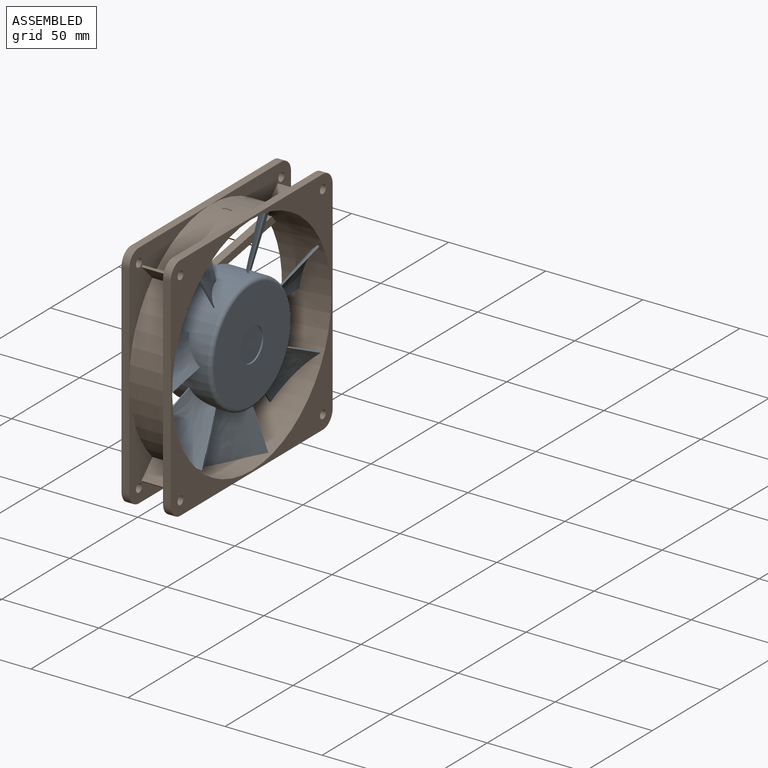
[diagram: assembled view]
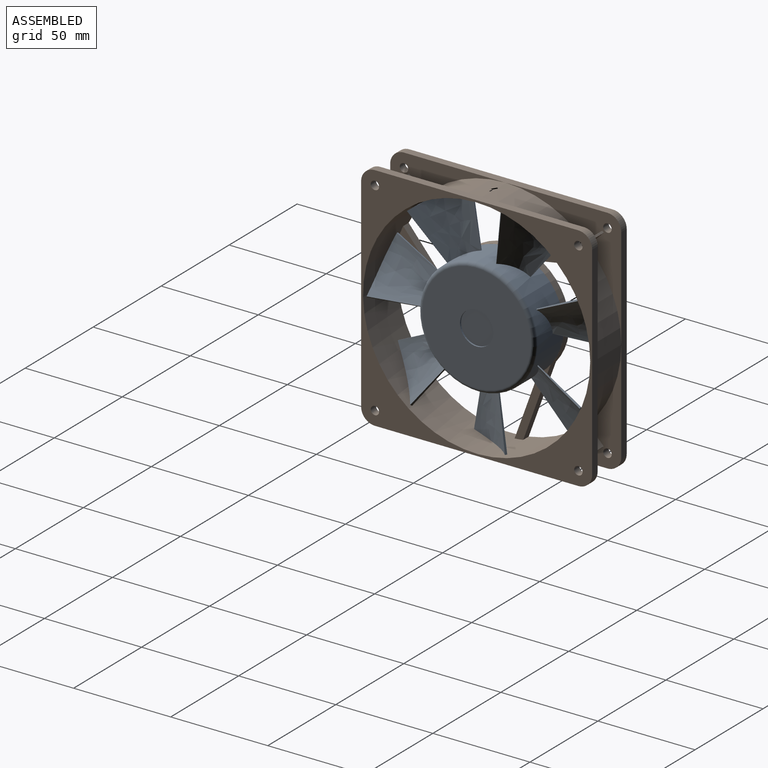
[diagram: assembled view, second angle]
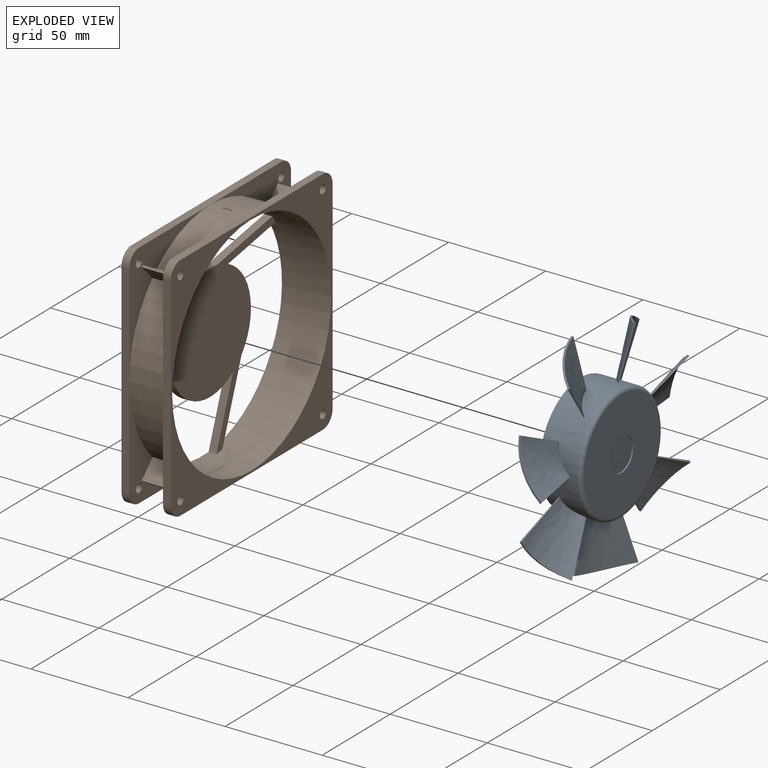
[diagram: exploded view]
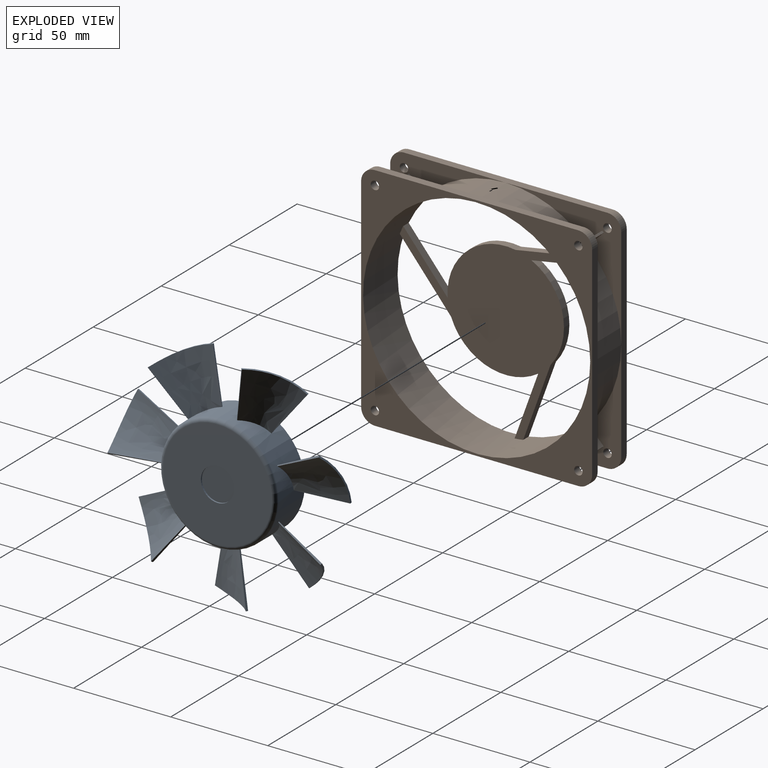
[diagram: exploded view, second angle]
ASSEMBLY  parts=2 mates=2
PART A: 41 faces, bbox 118.6x21.4x116.3 mm
  f0: plane 56x56mm, normal (0,-1,0), area 2232.2mm2, adj f38,f40
  f1: bspline ~31.81x26.92mm, area 642.2mm2, adj f2,f3,f29,f37
  f2: plane 26.99x6.36mm, normal (-0.63,-0.73,-0.26), area 20.7mm2, adj f1,f4,f29,f37
  f3: plane 26.68x6.88mm, normal (0.95,0.15,-0.26), area 20.3mm2, adj f1,f4,f29,f37
  f4: bspline ~31.79x27.53mm, area 656.4mm2, adj f2,f3,f29,f37
  f5: bspline ~37.49x34.53mm, area 642.2mm2, adj f6,f7,f29,f36
  f6: plane 21.66x17.81mm, normal (-0.6,-0.73,0.34), area 20.7mm2, adj f5,f8,f29,f36
  f7: plane 25.11x11.42mm, normal (0.39,0.15,-0.91), area 20.3mm2, adj f5,f8,f29,f36
  f8: bspline ~37.59x35.05mm, area 656.4mm2, adj f6,f7,f29,f36
  f9: bspline ~32.06x26.61mm, area 642.2mm2, adj f10,f11,f29,f35
  f10: plane 27.5x4.93mm, normal (-0.11,-0.73,0.68), area 20.7mm2, adj f9,f12,f29,f35
  f11: plane 24.53x12.64mm, normal (-0.46,0.15,-0.87), area 20.3mm2, adj f9,f12,f29,f35
  f12: bspline ~35.33x26.99mm, area 656.4mm2, adj f10,f11,f29,f35
  f13: bspline ~37.44x30.73mm, area 642.2mm2, adj f14,f15,f29,f34
  f14: plane 22.03x17.34mm, normal (0.46,-0.73,0.51), area 20.7mm2, adj f13,f16,f29,f34
  f15: plane 26.98x5.57mm, normal (-0.97,0.15,-0.18), area 20.3mm2, adj f13,f16,f29,f34
  f16: bspline ~34.73x30.52mm, area 656.4mm2, adj f14,f15,f29,f34
  f17: bspline ~34.08x31.08mm, area 642.2mm2, adj f18,f19,f29,f33
  f18: plane 26.87x6.95mm, normal (0.68,-0.73,-0.04), area 20.7mm2, adj f17,f20,f29,f33
  f19: plane 21.14x17.75mm, normal (-0.75,0.15,0.65), area 20.3mm2, adj f17,f20,f29,f33
  f20: bspline ~37.09x32.2mm, area 656.4mm2, adj f18,f19,f29,f33
  f21: bspline ~32.35x26.11mm, area 642.2mm2, adj f22,f23,f29,f32
  f22: plane 25.14x12.15mm, normal (0.39,-0.73,-0.56), area 20.7mm2, adj f21,f24,f29,f32
  f23: plane 27.49x3.31mm, normal (0.04,0.15,0.99), area 20.3mm2, adj f21,f24,f29,f32
  f24: bspline ~32.38x26.69mm, area 656.4mm2, adj f22,f23,f29,f32
  f25: bspline ~34.4x33.99mm, area 642.2mm2, adj f26,f27,f29,f31
  f26: plane 24.89x12.7mm, normal (-0.19,-0.73,-0.66), area 20.7mm2, adj f25,f28,f29,f31
  f27: plane 21.98x16.7mm, normal (0.8,0.15,0.59), area 20.3mm2, adj f25,f28,f29,f31
  f28: bspline ~34.8x34.16mm, area 656.4mm2, adj f26,f27,f29,f31
  f29: cylinder r=30mm len=60mm, axis (0,-1,0), area 3598.3mm2, adj f1,f2,f3,f4,f5,f6,f7,f8
  f30: plane 60x60mm, normal (0,1,0), area 2827.4mm2, adj f29
  f31: cylinder r=57.5mm len=20.67mm, axis (0,1,0), area 30.7mm2, adj f25,f26,f27,f28
  f32: cylinder r=57.5mm len=26.19mm, axis (0,1,0), area 30.7mm2, adj f21,f22,f23,f24
  f33: cylinder r=57.5mm len=23.94mm, axis (0,1,0), area 30.7mm2, adj f17,f18,f19,f20
  f34: cylinder r=57.5mm len=24.29mm, axis (0,1,0), area 30.7mm2, adj f13,f14,f15,f16
  f35: cylinder r=57.5mm len=26mm, axis (0,1,0), area 30.7mm2, adj f9,f10,f11,f12
  f36: cylinder r=57.5mm len=21.18mm, axis (0,1,0), area 30.7mm2, adj f5,f6,f7,f8
  f37: cylinder r=57.5mm len=26.77mm, axis (0,1,0), area 30.7mm2, adj f1,f2,f3,f4
  f38: cylinder r=8.57mm len=17.14mm, axis (0,-1,0), area 43.1mm2, adj f0,f39
  f39: plane 17.14x17.14mm, normal (0,-1,0), area 230.8mm2, adj f38
  f40: torus R=28mm, axis (0,1,0), area 577.8mm2, adj f0,f29
PART B: 69 faces, bbox 119x25.4x119 mm
  f0: cylinder r=2.16mm len=4.32mm, axis (0,1,0), area 54.3mm2, adj f1,f34
  f1: plane 59.5x59.5mm, normal (0,-1,0), area 722mm2, adj f0,f2,f16,f23,f24,f25,f43,f44
  f2: cylinder r=59.5mm len=83.38mm, axis (0,-1,0), area 1598.7mm2, adj f1,f3,f5,f8,f22,f24,f61,f62
  f3: plane 59.5x59.5mm, normal (0,-1,0), area 722mm2, adj f2,f4,f6,f7,f8,f45,f46,f47
  f4: cylinder r=59.5mm len=83.38mm, axis (0,-1,0), area 1607.5mm2, adj f3,f5,f7,f10,f12,f60
  f5: plane 59.5x59.5mm, normal (0,1,0), area 722mm2, adj f2,f4,f6,f7,f8,f9,f26,f27
  f6: plane 17.4x0.76mm, normal (-0.71,0,0.71), area 18.8mm2, adj f3,f5,f7,f8
  f7: plane 17.4x8.04mm, normal (-0.71,0,-0.71), area 197.8mm2, adj f3,f4,f5,f6
  f8: plane 17.4x8.04mm, normal (0.71,0,0.71), area 197.8mm2, adj f2,f3,f5,f6
  f9: plane 104.8x4mm, normal (-1,0,0), area 419.2mm2, adj f5,f10,f27,f28,f56
  f10: plane 59.5x59.5mm, normal (0,1,0), area 722mm2, adj f4,f9,f11,f13,f14,f29,f54,f56
  f11: plane 17.4x0.76mm, normal (-0.71,0,-0.71), area 18.8mm2, adj f10,f12,f14,f60
  f12: plane 59.5x59.5mm, normal (0,-1,0), area 722mm2, adj f4,f11,f13,f14,f41,f47,f48,f49
  f13: cylinder r=59.5mm len=83.38mm, axis (0,-1,0), area 1607.5mm2, adj f10,f12,f14,f15,f17,f20
  f14: plane 17.4x8.04mm, normal (0.71,0,-0.71), area 197.8mm2, adj f10,f11,f12,f13
  f15: plane 59.5x59.5mm, normal (0,-1,0), area 722mm2, adj f13,f16,f18,f19,f20,f42,f43,f49
  f16: cylinder r=59.5mm len=83.38mm, axis (0,-1,0), area 1607.5mm2, adj f1,f15,f17,f19,f22,f25
  f17: plane 59.5x59.5mm, normal (0,1,0), area 722mm2, adj f13,f16,f18,f19,f20,f21,f54,f55
  f18: plane 17.4x0.76mm, normal (0.71,0,-0.71), area 18.8mm2, adj f15,f17,f19,f20
  f19: plane 17.4x8.04mm, normal (0.71,0,0.71), area 197.8mm2, adj f15,f16,f17,f18
  f20: plane 17.4x8.04mm, normal (-0.71,0,-0.71), area 197.8mm2, adj f13,f15,f17,f18
  f21: plane 104.8x4mm, normal (1,0,0), area 419.2mm2, adj f17,f22,f28,f55,f57
  f22: plane 59.5x59.5mm, normal (0,1,0), area 722mm2, adj f2,f16,f21,f23,f24,f25,f26,f30
  f23: plane 17.4x0.76mm, normal (0.71,0,0.71), area 18.8mm2, adj f1,f22,f24,f25
  f24: plane 17.4x8.04mm, normal (-0.71,0,0.71), area 197.8mm2, adj f1,f2,f22,f23
  f25: plane 17.4x8.04mm, normal (0.71,0,-0.71), area 197.8mm2, adj f1,f16,f22,f23
  f26: plane 104.8x4mm, normal (0,0,1), area 419.2mm2, adj f5,f22,f27,f28,f57
  f27: cylinder r=7.1mm len=7.1mm, axis (0,1,0), area 44.6mm2, adj f5,f9,f26,f28
  f28: plane 119x119mm, normal (0,-1,0), area 3307.8mm2, adj f9,f21,f26,f27,f29,f30,f31,f54
  f29: cylinder r=2.16mm len=4.32mm, axis (0,1,0), area 54.3mm2, adj f10,f28
  f30: cylinder r=2.16mm len=4.32mm, axis (0,1,0), area 54.3mm2, adj f22,f28
  f31: cylinder r=58.5mm len=117mm, axis (0,1,0), area 9282.5mm2, adj f28,f32,f33,f34,f35,f37,f38,f40
  f32: plane 102.79x95.03mm, normal (0,-1,0), area 3282.6mm2, adj f31,f33,f35,f36,f37,f38,f39,f40
  f33: plane 38.63x14.06mm, normal (0.94,0,-0.34), area 164.4mm2, adj f31,f32,f34,f51
  f34: plane 119x119mm, normal (0,1,0), area 6590.4mm2, adj f0,f31,f33,f35,f36,f37,f38,f39
  f35: plane 33.42x12.16mm, normal (-0.94,0,0.34), area 142.3mm2, adj f31,f32,f34,f36
  f36: cylinder r=30mm len=44.87mm, axis (0,1,0), area 217mm2, adj f32,f34,f35,f37
  f37: plane 31.49x26.42mm, normal (-0.77,0,-0.64), area 164.4mm2, adj f31,f32,f34,f36
  f38: plane 27.24x22.86mm, normal (0.77,0,0.64), area 142.3mm2, adj f31,f32,f34,f39
  f39: cylinder r=30mm len=35.07mm, axis (0,1,0), area 217mm2, adj f32,f34,f38,f40
  f40: plane 40.48x7.14mm, normal (-0.17,0,0.98), area 164.4mm2, adj f31,f32,f34,f39
  f41: cylinder r=2.16mm len=4.32mm, axis (0,1,0), area 54.3mm2, adj f12,f34
  f42: cylinder r=7.1mm len=7.1mm, axis (0,1,0), area 44.6mm2, adj f15,f34,f43,f49
  f43: plane 104.8x4mm, normal (1,0,0), area 419.2mm2, adj f1,f15,f34,f42,f44
  f44: cylinder r=7.1mm len=7.1mm, axis (0,1,0), area 44.6mm2, adj f1,f34,f43,f45
  f45: plane 104.8x4mm, normal (0,0,1), area 419.2mm2, adj f1,f3,f34,f44,f46
  f46: cylinder r=7.1mm len=7.1mm, axis (0,1,0), area 44.6mm2, adj f3,f34,f45,f47
  f47: plane 104.8x4mm, normal (-1,0,0), area 419.2mm2, adj f3,f12,f34,f46,f48
  f48: cylinder r=7.1mm len=7.1mm, axis (0,1,0), area 44.6mm2, adj f12,f34,f47,f49
  f49: plane 104.8x4mm, normal (0,0,-1), area 419.2mm2, adj f12,f15,f34,f42,f48
  f50: plane 35.02x6.18mm, normal (0.17,0,-0.98), area 142.3mm2, adj f31,f32,f34,f51
  f51: cylinder r=30mm len=46.12mm, axis (0,1,0), area 217mm2, adj f32,f33,f34,f50
  f52: cylinder r=2.16mm len=4.32mm, axis (0,1,0), area 54.3mm2, adj f15,f34
  f53: cylinder r=2.16mm len=4.32mm, axis (0,1,0), area 54.3mm2, adj f3,f34
  f54: plane 104.8x4mm, normal (0,0,-1), area 419.2mm2, adj f10,f17,f28,f55,f56
  f55: cylinder r=7.1mm len=7.1mm, axis (0,1,0), area 44.6mm2, adj f17,f21,f28,f54
  f56: cylinder r=7.1mm len=7.1mm, axis (0,1,0), area 44.6mm2, adj f9,f10,f28,f54
  f57: cylinder r=7.1mm len=7.1mm, axis (0,1,0), area 44.6mm2, adj f21,f22,f26,f28
  f58: cylinder r=2.16mm len=4.32mm, axis (0,1,0), area 54.3mm2, adj f17,f28
  f59: cylinder r=2.16mm len=4.32mm, axis (0,1,0), area 54.3mm2, adj f5,f28
  f60: plane 17.4x8.04mm, normal (-0.71,0,0.71), area 197.8mm2, adj f4,f10,f11,f12
  f61: plane 2.5x0.49mm, normal (-1,0,0), area 1.2mm2, adj f2,f62,f67,f68
  f62: plane 0.87x0.49mm, normal (0,1,0), area 0.4mm2, adj f2,f61,f63,f68
  f63: plane 2.5x1.75mm, normal (-0.82,-0.57,0), area 1.5mm2, adj f2,f62,f64,f68
  f64: plane 2.5x1.75mm, normal (0.82,-0.57,0), area 1.5mm2, adj f2,f63,f65,f68
  f65: plane 0.87x0.49mm, normal (0,1,0), area 0.4mm2, adj f2,f64,f66,f68
  f66: plane 2.5x0.49mm, normal (1,0,0), area 1.2mm2, adj f2,f65,f67,f68
  f67: plane 1.76x0.5mm, normal (0,1,0), area 0.9mm2, adj f2,f61,f66,f68
  f68: plane 5x3.5mm, normal (0,0,1), area 8.8mm2, adj f61,f62,f63,f64,f65,f66,f67
PLACE A rot(axis=(0.67,-0.67,0.31),145.6deg) t=(1191.65,759.46,530.86)mm
PLACE B rot(axis=(0,0,1),90deg) t=(1191.65,759.46,530.86)mm fixed
MATE planar A.f29 <-> B.f31  axis (-1,0,0) through (1195.65,759.46,530.86)mm
MATE cylindrical A.f29 <-> B.f31  axis (1,0,0) through (1205.35,759.46,530.86)mm
